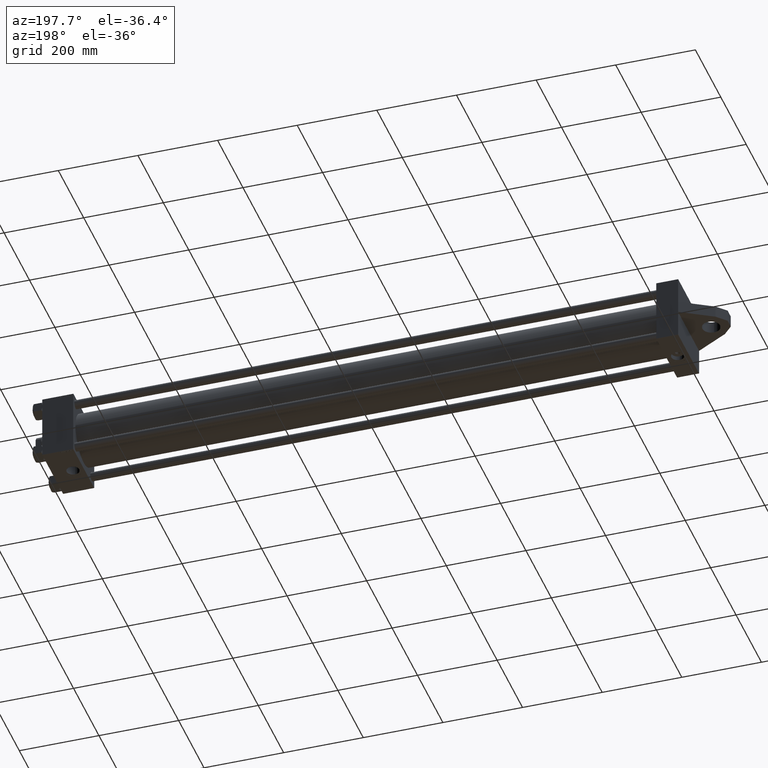
[diagram: clean part render]
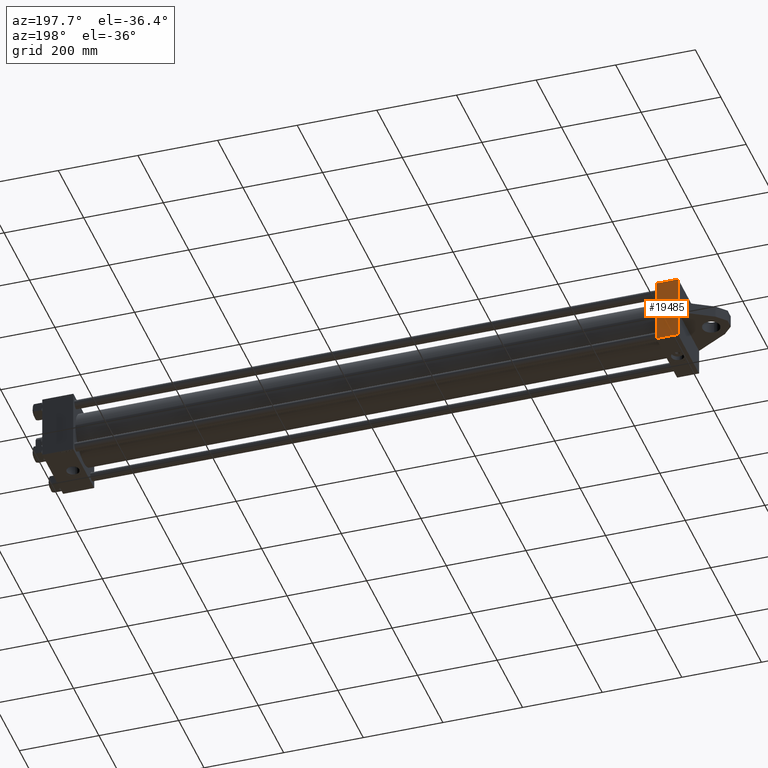
[diagram: same view with one face highlighted and labeled with its STEP entity id]
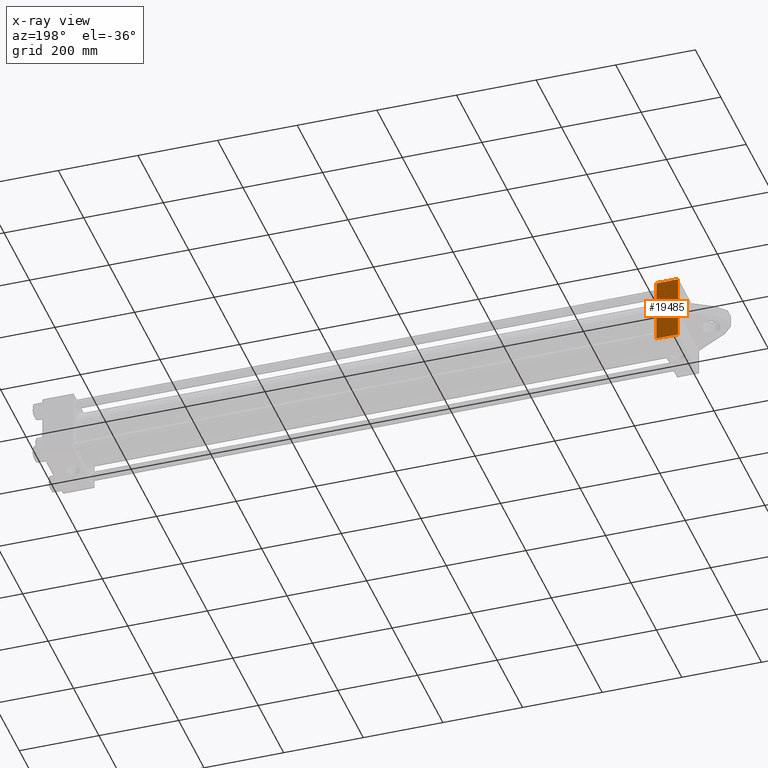
[diagram: x-ray of the same camera — body ghosted, the highlighted face saturated]
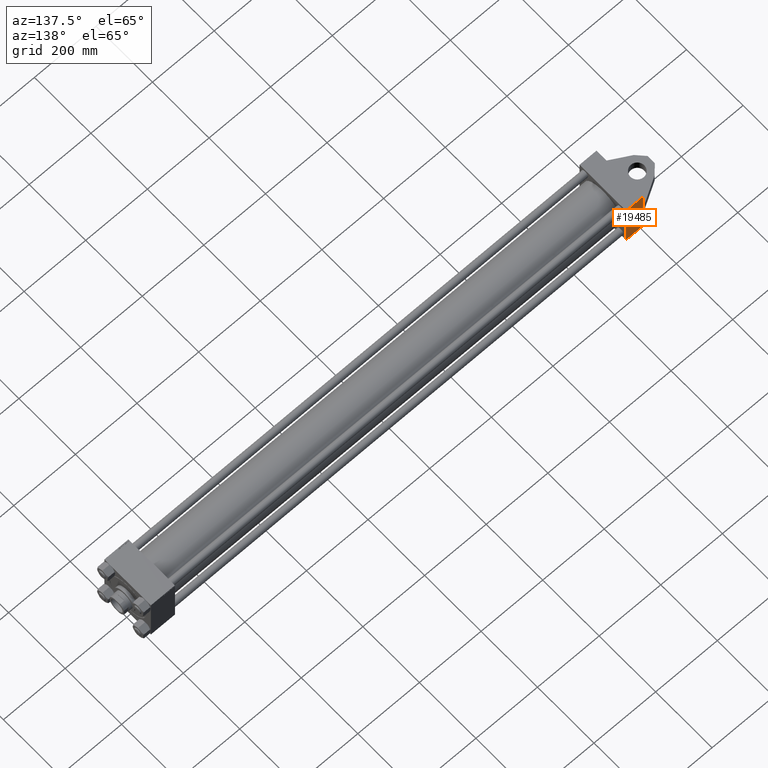
[diagram: same view with one face highlighted and labeled with its STEP entity id]
A machine part, auxiliary view. The second image highlights one B-rep face of the part: STEP entity #19485.
The next image is the same camera in x-ray: the body ghosted, the highlighted face saturated — about 0% of this face is hidden behind the body in this view.
A second angle (auxiliary view) of the same face is appended — the face is thin or edge-on in the first view.
In plain terms, the highlighted planar face has unit normal (-0, 1, 0).
Its self-contained STEP definition (entity closure, byte-faithful):
#81 = VECTOR ( 'NONE', #45833, 1000.000000000000000 ) ;
#1272 = LINE ( 'NONE', #40858, #24972 ) ;
#1335 = DIRECTION ( 'NONE',  ( 0.000000000000000000, 1.000000000000000000, 0.000000000000000000 ) ) ;
#3891 = VERTEX_POINT ( 'NONE', #27986 ) ;
#4340 = CARTESIAN_POINT ( 'NONE',  ( 55.00000000000000000, 82.00000000000005684, -82.49999999999997158 ) ) ;
#5300 = VERTEX_POINT ( 'NONE', #17273 ) ;
#5407 = CARTESIAN_POINT ( 'NONE',  ( 55.00000000000000000, 82.50000000000002842, -82.49999999999997158 ) ) ;
#5821 = VECTOR ( 'NONE', #1335, 1000.000000000000000 ) ;
#8541 = VERTEX_POINT ( 'NONE', #4340 ) ;
#9632 = PLANE ( 'NONE',  #37466 ) ;
#10592 = EDGE_CURVE ( 'NONE', #3891, #8541, #31617, .T. ) ;
#11647 = DIRECTION ( 'NONE',  ( 0.000000000000000000, -1.000000000000000000, -1.682156097916903588E-16 ) ) ;
#12424 = ORIENTED_EDGE ( 'NONE', *, *, #26018, .T. ) ;
#12531 = VERTEX_POINT ( 'NONE', #30689 ) ;
#13100 = CARTESIAN_POINT ( 'NONE',  ( 0.000000000000000000, -82.00000000000000000, -82.50000000000000000 ) ) ;
#13167 = DIRECTION ( 'NONE',  ( 0.000000000000000000, 1.682156097916903588E-16, -1.000000000000000000 ) ) ;
#15222 = EDGE_CURVE ( 'NONE', #23319, #5300, #16233, .T. ) ;
#15471 = EDGE_CURVE ( 'NONE', #23319, #32404, #33621, .T. ) ;
#16233 = LINE ( 'NONE', #30598, #33672 ) ;
#16242 = FACE_OUTER_BOUND ( 'NONE', #37571, .T. ) ;
#16442 = CARTESIAN_POINT ( 'NONE',  ( 0.000000000000000000, 15.00000000000000000, -82.50000000000000000 ) ) ;
#17273 = CARTESIAN_POINT ( 'NONE',  ( 0.000000000000000000, -82.00000000000000000, -82.50000000000000000 ) ) ;
#19485 = ADVANCED_FACE ( 'NONE', ( #16242 ), #9632, .T. ) ;
#19946 = LINE ( 'NONE', #13100, #81 ) ;
#22313 = CARTESIAN_POINT ( 'NONE',  ( 0.000000000000000000, -15.00000000000000000, -82.50000000000000000 ) ) ;
#23319 = VERTEX_POINT ( 'NONE', #29161 ) ;
#23759 = VECTOR ( 'NONE', #39148, 1000.000000000000000 ) ;
#23761 = CARTESIAN_POINT ( 'NONE',  ( 55.00000000000000000, 82.50000000000002842, -82.49999999999997158 ) ) ;
#24711 = ORIENTED_EDGE ( 'NONE', *, *, #10592, .T. ) ;
#24972 = VECTOR ( 'NONE', #11647, 1000.000000000000000 ) ;
#26018 = EDGE_CURVE ( 'NONE', #8541, #12531, #31283, .T. ) ;
#27074 = DIRECTION ( 'NONE',  ( 0.000000000000000000, -1.000000000000000000, -1.682156097916903588E-16 ) ) ;
#27986 = CARTESIAN_POINT ( 'NONE',  ( 0.000000000000000000, 82.00000000000005684, -82.49999999999997158 ) ) ;
#28139 = EDGE_CURVE ( 'NONE', #12531, #5300, #19946, .T. ) ;
#29161 = CARTESIAN_POINT ( 'NONE',  ( 0.000000000000000000, -15.00000000000000000, -82.49999999999998579 ) ) ;
#30095 = ORIENTED_EDGE ( 'NONE', *, *, #15471, .T. ) ;
#30598 = CARTESIAN_POINT ( 'NONE',  ( 0.000000000000000000, 82.50000000000002842, -82.49999999999997158 ) ) ;
#30689 = CARTESIAN_POINT ( 'NONE',  ( 55.00000000000000000, -82.00000000000000000, -82.50000000000000000 ) ) ;
#31283 = LINE ( 'NONE', #23761, #36136 ) ;
#31617 = LINE ( 'NONE', #38914, #23759 ) ;
#32404 = VERTEX_POINT ( 'NONE', #16442 ) ;
#33621 = LINE ( 'NONE', #22313, #5821 ) ;
#33672 = VECTOR ( 'NONE', #27074, 1000.000000000000000 ) ;
#34590 = DIRECTION ( 'NONE',  ( 0.000000000000000000, -1.000000000000000000, -1.682156097916903588E-16 ) ) ;
#36136 = VECTOR ( 'NONE', #34590, 1000.000000000000000 ) ;
#36512 = EDGE_CURVE ( 'NONE', #3891, #32404, #1272, .T. ) ;
#37466 = AXIS2_PLACEMENT_3D ( 'NONE', #5407, #13167, #41677 ) ;
#37472 = ORIENTED_EDGE ( 'NONE', *, *, #15222, .F. ) ;
#37571 = EDGE_LOOP ( 'NONE', ( #46295, #24711, #12424, #38025, #37472, #30095 ) ) ;
#38025 = ORIENTED_EDGE ( 'NONE', *, *, #28139, .T. ) ;
#38914 = CARTESIAN_POINT ( 'NONE',  ( 55.00000000000000000, 82.00000000000005684, -82.49999999999997158 ) ) ;
#39148 = DIRECTION ( 'NONE',  ( 1.000000000000000000, 0.000000000000000000, 0.000000000000000000 ) ) ;
#40858 = CARTESIAN_POINT ( 'NONE',  ( 0.000000000000000000, 82.50000000000002842, -82.49999999999997158 ) ) ;
#41677 = DIRECTION ( 'NONE',  ( 0.000000000000000000, 1.000000000000000000, 1.682156097916903588E-16 ) ) ;
#45833 = DIRECTION ( 'NONE',  ( -1.000000000000000000, 0.000000000000000000, 0.000000000000000000 ) ) ;
#46295 = ORIENTED_EDGE ( 'NONE', *, *, #36512, .F. ) ;